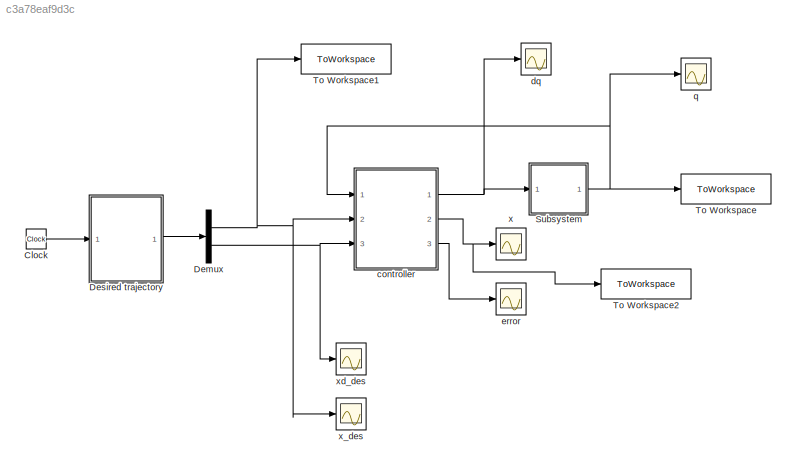
MODEL slx_c3a78eaf9d3c
KIND model
CONFIG AbsTol = auto
CONFIG EnableMultiTasking = off
CONFIG FixedStep = 0.01
CONFIG MaxStep = auto
CONFIG MinStep = auto
CONFIG RelTol = 1e-3
CONFIG SampleTimeConstraint = Unconstrained
CONFIG Solver = ode1
CONFIG SolverName = ode1
CONFIG StartTime = 0.0
CONFIG StopTime = tf
BLOCK [Clock] Clock
  Decimation = 6
  DisplayTime = on
BLOCK [Demux] Demux
  DisplayOption = bar
  Outputs = 2
  Ports = [1, 2]
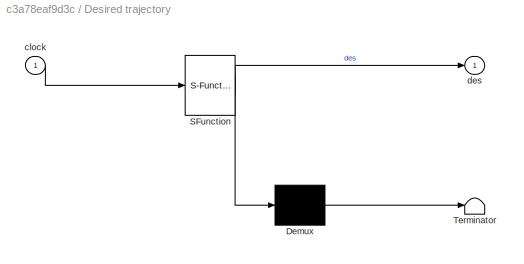
BLOCK [SubSystem] Desired trajectory
  ErrorFcn = Stateflow.Translate.translate
  PermitHierarchicalResolution = ExplicitOnly
  Ports = [1, 1]
  RequestExecContextInheritance = off
  SFBlockType = MATLAB Function
  TreatAsAtomicUnit = on
BLOCK [Demux] Desired trajectory/ Demux 
  Outputs = 1
  Ports = [1, 1]
BLOCK [S-Function] Desired trajectory/ SFunction 
  EnableBusSupport = on
  FunctionName = sf_sfun
  PortCounts = [1 2]
  Ports = [1, 2]
  SFcnIsStateOwnerBlock = off
  SFunctionDeploymentMode = off
  Tag = Stateflow S-Function 2
BLOCK [Terminator] Desired trajectory/ Terminator 
BLOCK [Inport] Desired trajectory/clock
  IconDisplay = Port number
BLOCK [Outport] Desired trajectory/des
  IconDisplay = Port number
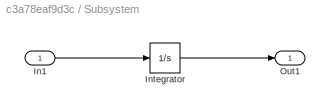
BLOCK [SubSystem] Subsystem
  Ports = [1, 1]
  RequestExecContextInheritance = off
BLOCK [Inport] Subsystem/In1
  IconDisplay = Port number
BLOCK [Integrator] Subsystem/Integrator
  InitialCondition = qi
  Ports = [1, 1]
BLOCK [Outport] Subsystem/Out1
  IconDisplay = Port number
BLOCK [ToWorkspace] To Workspace
  FixptAsFi = on
  MaxDataPoints = inf
  Ports = [1]
  SampleTime = -1
  VariableName = q
BLOCK [ToWorkspace] To Workspace1
  FixptAsFi = on
  MaxDataPoints = inf
  Ports = [1]
  SampleTime = -1
  VariableName = x_des
BLOCK [ToWorkspace] To Workspace2
  FixptAsFi = on
  MaxDataPoints = inf
  Ports = [1]
  SampleTime = -1
  VariableName = x
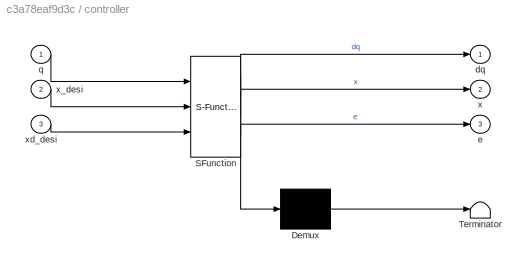
BLOCK [SubSystem] controller 
  ErrorFcn = Stateflow.Translate.translate
  PermitHierarchicalResolution = ExplicitOnly
  Ports = [3, 3]
  RequestExecContextInheritance = off
  SFBlockType = MATLAB Function
  TreatAsAtomicUnit = on
BLOCK [Demux] controller / Demux 
  Outputs = 1
  Ports = [1, 1]
BLOCK [S-Function] controller / SFunction 
  EnableBusSupport = on
  FunctionName = sf_sfun
  PortCounts = [3 4]
  Ports = [3, 4]
  SFcnIsStateOwnerBlock = off
  SFunctionDeploymentMode = off
  Tag = Stateflow S-Function 1
BLOCK [Terminator] controller / Terminator 
BLOCK [Outport] controller /dq
  IconDisplay = Port number
BLOCK [Outport] controller /e
  IconDisplay = Port number
  Port = 3
BLOCK [Inport] controller /q
  IconDisplay = Port number
BLOCK [Outport] controller /x
  IconDisplay = Port number
  Port = 2
BLOCK [Inport] controller /x_desi
  IconDisplay = Port number
  Port = 2
BLOCK [Inport] controller /xd_desi
  IconDisplay = Port number
  Port = 3
BLOCK [Scope] dq
  Floating = off
  NumInputPorts = 1
  Ports = [1]
  ScopeSpecificationString = Simulink.scopes.TimeScopeBlockCfg('CurrentConfiguration', extmgr.ConfigurationSet(extmgr.Configuration('Core','General UI',true),extmgr.Configuration('Core','Source UI',true),extmgr.Configuration('Sources','WiredSimulink',true,'DataLoggingVariableName','ScopeData2'),extmgr.Configuration('Visuals','Time Domain',true,'SerializedDisplays',{struct('MinYLimReal','-0.52057','MaxYLimReal','0.57132','YLab...<+1548ch>
BLOCK [Scope] error
  Floating = off
  NumInputPorts = 1
  Ports = [1]
  ScopeSpecificationString = Simulink.scopes.TimeScopeBlockCfg('CurrentConfiguration', extmgr.ConfigurationSet(extmgr.Configuration('Core','General UI',true),extmgr.Configuration('Core','Source UI',true),extmgr.Configuration('Sources','WiredSimulink',true,'DataLoggingVariableName','ScopeData1'),extmgr.Configuration('Visuals','Time Domain',true,'SerializedDisplays',{struct('MinYLimReal','-1.08924','MaxYLimReal','7.10022','YLab...<+1688ch>
BLOCK [Scope] q
  Floating = off
  NumInputPorts = 1
  Ports = [1]
  ScopeSpecificationString = Simulink.scopes.TimeScopeBlockCfg('CurrentConfiguration', extmgr.ConfigurationSet(extmgr.Configuration('Core','General UI',true),extmgr.Configuration('Core','Source UI',true),extmgr.Configuration('Sources','WiredSimulink',true,'DataLoggingVariableName','ScopeData1'),extmgr.Configuration('Visuals','Time Domain',true,'SerializedDisplays',{struct('MinYLimReal','-3.5028','MaxYLimReal','4.04808','YLabe...<+1671ch>
BLOCK [Scope] x
  Floating = off
  NumInputPorts = 1
  Ports = [1]
  ScopeSpecificationString = Simulink.scopes.TimeScopeBlockCfg('CurrentConfiguration', extmgr.ConfigurationSet(extmgr.Configuration('Core','General UI',true),extmgr.Configuration('Core','Source UI',true),extmgr.Configuration('Sources','WiredSimulink',true,'DataLoggingVariableName','ScopeData3'),extmgr.Configuration('Visuals','Time Domain',true,'SerializedDisplays',{struct('MinYLimReal','-1.5708','MaxYLimReal','3.66519','YLabe...<+1522ch>
BLOCK [Scope] x_des 
  Floating = off
  NumInputPorts = 1
  Ports = [1]
  ScopeSpecificationString = Simulink.scopes.TimeScopeBlockCfg('CurrentConfiguration', extmgr.ConfigurationSet(extmgr.Configuration('Core','General UI',true),extmgr.Configuration('Core','Source UI',true),extmgr.Configuration('Sources','WiredSimulink',true),extmgr.Configuration('Visuals','Time Domain',true,'SerializedDisplays',{struct('MinYLimReal','-1.5708','MaxYLimReal','3.6652','YLabelReal','','MinYLimMag','0.00000','MaxYLi...<+1438ch>
BLOCK [Scope] xd_des
  Floating = off
  NumInputPorts = 1
  Ports = [1]
  ScopeSpecificationString = Simulink.scopes.TimeScopeBlockCfg('CurrentConfiguration', extmgr.ConfigurationSet(extmgr.Configuration('Core','General UI',true),extmgr.Configuration('Core','Source UI',true),extmgr.Configuration('Sources','WiredSimulink',true,'DataLoggingVariableName','ScopeData2'),extmgr.Configuration('Visuals','Time Domain',true,'SerializedDisplays',{struct('MinYLimReal','-0.17706','MaxYLimReal','0.09571','YLab...<+1622ch>
LINE Clock:1 -> Desired trajectory:1
NET Demux:1 -> To Workspace1:1, controller :2, x_des :1
NET Demux:2 -> controller :3, xd_des:1
LINE Desired trajectory:1 -> Demux:1
LINE Subsystem/In1:1 -> Subsystem/Integrator:1
LINE Subsystem/Integrator:1 -> Subsystem/Out1:1
NET Subsystem:1 -> To Workspace:1, controller :1, q:1
NET controller :1 -> Subsystem:1, dq:1
NET controller :2 -> To Workspace2:1, x:1
LINE controller :3 -> error:1
note: NET lines group one-source signal fan-out (src -> all destinations, sorted); 1:1 wires keep LINE
CHART controller  states=1 transitions=1
  STATE_LABEL 'eML_blk_kernel()'
  STATE_LABEL 'SCRIPT:\nfunction [dq,x,e] = fcn(q,x_desi,xd_desi)\nteta1=q(1);\nteta2=q(2);\nteta3=q(3);\nteta4=q(4);\nteta5=q(5);\nteta6=q(6);\nteta7=q(7);  \n\n%% jacobian\nA=cell(7);\nT0=cell(7);\nR0=cell(7);\nP0=cell(7);\nZ=cell(7);\n\nteta=[teta1 teta2 teta3 teta4 teta5 teta6 teta7];\nalpha=[pi/2 -pi/2 pi/2 -pi/2 pi/2 pi/2 0];\na=[0 0 0.0825 -0.0825 0 0.088 0];\nd=[0.333 0 0.316 0 0.384 0 0.1070];\n\nfor i=1:7\n    A{i-1+1,i}=[co...<+1212ch>'
CHART Desired trajectory states=1 transitions=1
  STATE_LABEL 'eML_blk_kernel()'
  STATE_LABEL "SCRIPT:\nfunction des = fcn(clock)\nt=clock;\n\npinitial=[0 0.5545 0.6245 3.1416 0 -1.0472].';\npf=[0.2689 0.2689 0.0359 3.1416 0 -1.0472].';\n\n%% trajectory\nl=norm(pf-pinitial);\nvmax=0.18;\nT=7;\nts=T-l/vmax;\namax=vmax/ts;\n\n    if t<=ts\n        sigma=amax*t^2/2;\n        sigmadot=amax*t;\n    elseif (ts<t)&&(t<T-ts)\n        sigma=vmax*t-vmax^2/(2*amax);\n        sigmadot=vmax;\n    else\n        sigma=-amax*(...<+149ch>"
